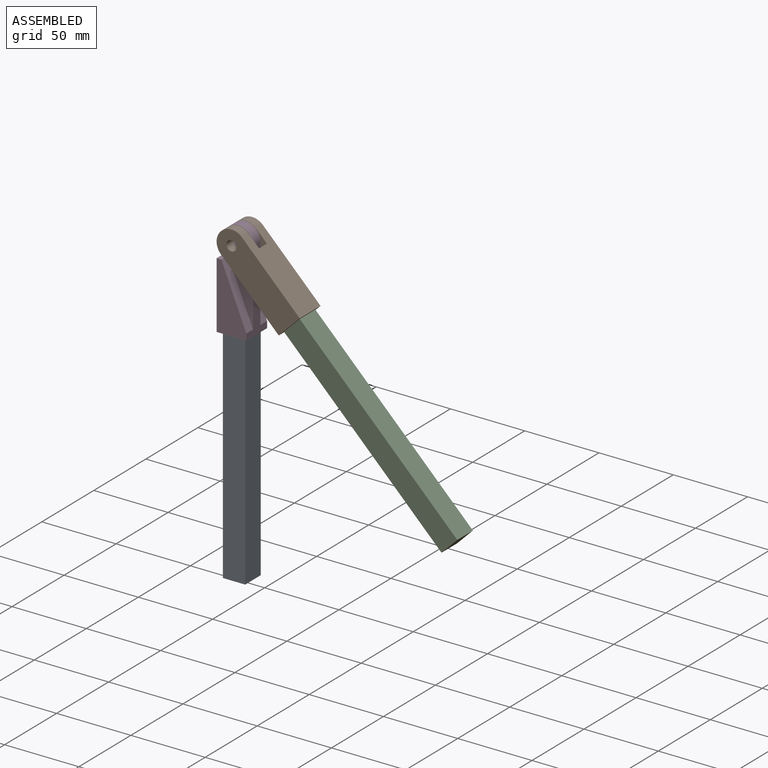
[diagram: assembled view]
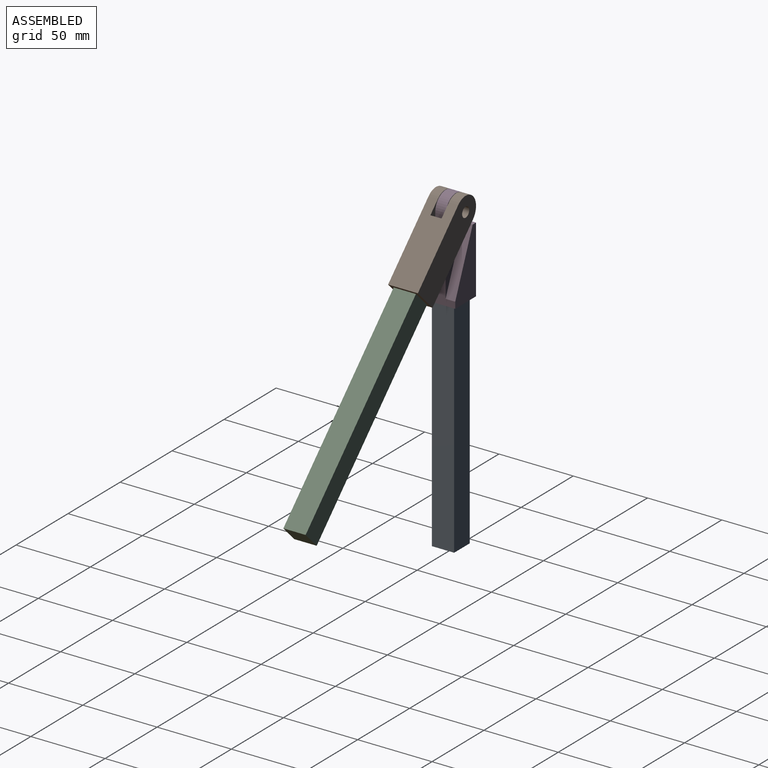
[diagram: assembled view, second angle]
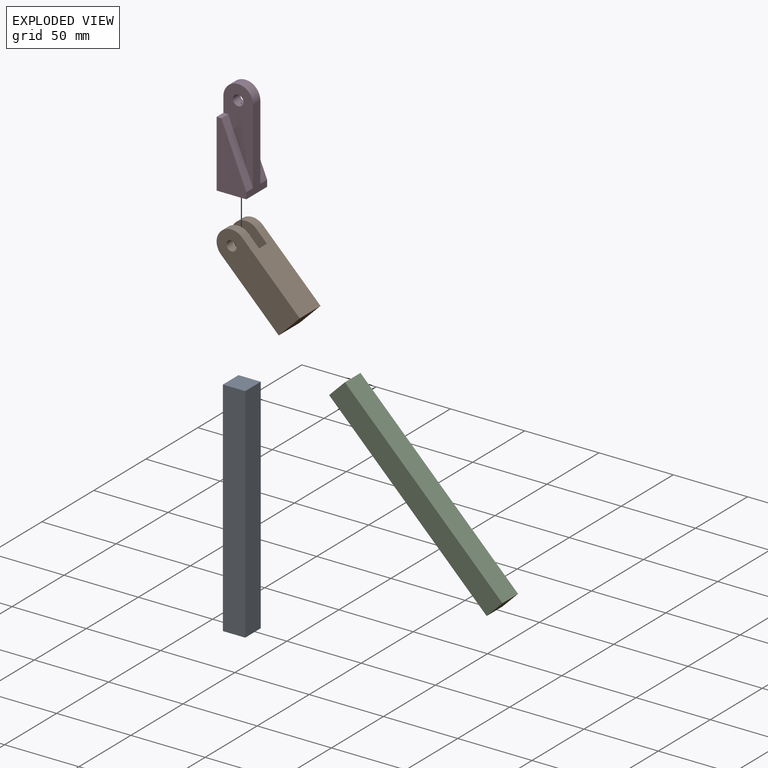
[diagram: exploded view]
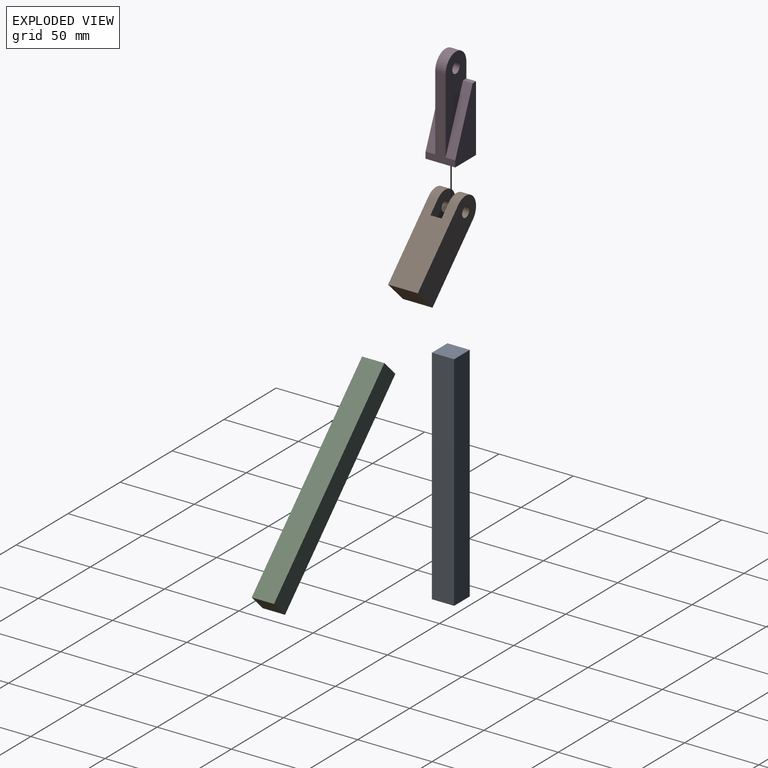
[diagram: exploded view, second angle]
ASSEMBLY  parts=4 mates=3
PART A: 6 faces, bbox 15x15x150 mm
  f0: plane 150x15mm, normal (1,0,0), area 2250mm2, adj f1,f3,f4,f5
  f1: plane 150x15mm, normal (0,1,0), area 2250mm2, adj f0,f2,f4,f5
  f2: plane 150x15mm, normal (-1,0,0), area 2250mm2, adj f1,f3,f4,f5
  f3: plane 150x15mm, normal (0,-1,0), area 2250mm2, adj f0,f2,f4,f5
  f4: plane 15x15mm, normal (0,0,1), area 225mm2, adj f0,f1,f2,f3
  f5: plane 15x15mm, normal (0,0,-1), area 225mm2, adj f0,f1,f2,f3
PART B: 13 faces, bbox 20x20x65 mm
  f0: cylinder r=10mm len=20mm, axis (0,1,0), area 196.3mm2, adj f2,f4,f8,f11
  f1: cylinder r=3.38mm len=6.75mm, axis (0,1,0), area 132.5mm2, adj f8,f11
  f2: plane 55x20mm, normal (1,0,0), area 1023.9mm2, adj f0,f3,f5,f7,f8,f10,f11,f12
  f3: cylinder r=10mm len=20mm, axis (0,1,0), area 196.3mm2, adj f2,f4,f7,f12
  f4: plane 55x20mm, normal (-1,0,0), area 720mm2, adj f0,f3,f5,f7,f8,f9,f11,f12
  f5: plane 20x20mm, normal (0,0,-1), area 400mm2, adj f2,f4,f7,f8
  f6: cylinder r=3.38mm len=6.75mm, axis (0,1,0), area 132.5mm2, adj f7,f12
  f7: plane 65x20mm, normal (0,-1,0), area 1221.3mm2, adj f2,f3,f4,f5,f6
  f8: plane 65x20mm, normal (0,1,0), area 1221.3mm2, adj f0,f1,f2,f4,f5
  f9: plane 40.52x16.78mm, normal (-0.92,0,0.38), area 328.9mm2, adj f4,f10,f11,f12
  f10: plane 7.5x3.22mm, normal (0,0,1), area 24.1mm2, adj f2,f9,f11,f12
  f11: plane 60.67x20mm, normal (0,-1,0), area 664.3mm2, adj f0,f1,f2,f4,f9,f10
  f12: plane 60.67x20mm, normal (0,1,0), area 664.3mm2, adj f2,f3,f4,f6,f9,f10
PART C: same geometry as A
PART D: 13 faces, bbox 20x20x65 mm
  f0: plane 40.52x16.78mm, normal (0.92,0,0.38), area 285mm2, adj f1,f3,f8,f12
  f1: plane 6.5x3.22mm, normal (0,0,1), area 20.9mm2, adj f0,f6,f8,f12
  f2: plane 20x20mm, normal (0,0,-1), area 400mm2, adj f3,f6,f7,f8
  f3: plane 55x20mm, normal (1,0,0), area 441.4mm2, adj f0,f2,f4,f7,f8,f9,f11,f12
  f4: plane 40.52x16.78mm, normal (0.92,0,0.38), area 285mm2, adj f3,f5,f7,f11
  f5: plane 6.5x3.22mm, normal (0,0,1), area 20.9mm2, adj f4,f6,f7,f11
  f6: plane 55x20mm, normal (-1,0,0), area 968.1mm2, adj f1,f2,f5,f7,f8,f9,f11,f12
  f7: plane 44.85x20mm, normal (0,-1,0), area 557mm2, adj f2,f3,f4,f5,f6
  f8: plane 44.85x20mm, normal (0,1,0), area 557mm2, adj f0,f1,f2,f3,f6
  f9: cylinder r=10mm len=20mm, axis (0,1,0), area 219.9mm2, adj f3,f6,f11,f12
  f10: cylinder r=3.5mm len=7mm, axis (0,1,0), area 153.9mm2, adj f11,f12
  f11: plane 60.67x20mm, normal (0,-1,0), area 661.6mm2, adj f3,f4,f5,f6,f9,f10
  f12: plane 60.67x20mm, normal (0,1,0), area 661.6mm2, adj f0,f1,f3,f6,f9,f10
PLACE A t=(-23.94,-9.09,-147.47)mm
PLACE B rot(axis=(0,-1,0),45deg) t=(0.8,-9.09,4.5)mm
PLACE C rot(axis=(0.92,0,0.38),180deg) t=(14.95,-9.09,18.64)mm
PLACE D t=(-3.94,-9.09,2.53)mm fixed
MATE revolute D.f9 <-> B.f0  axis (0,1,0) through (-23.94,-12.59,57.53)mm
MATE fastened B.f5 <-> C.f5  axis (0.71,0,-0.71) through (14.95,-9.09,18.64)mm
MATE fastened A.f4 <-> D.f2  axis (0,0,1) through (-23.94,-9.09,2.53)mm
